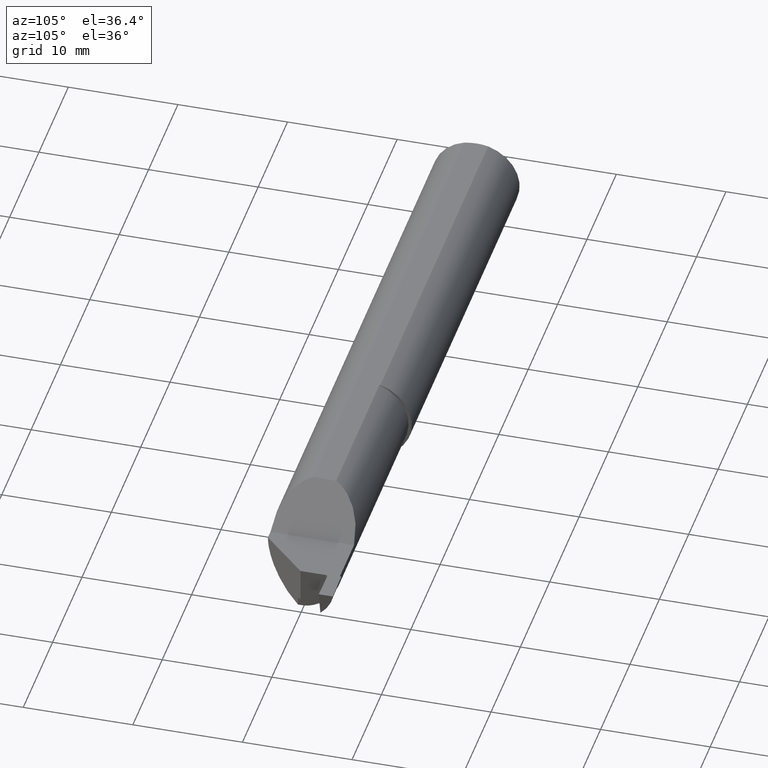
[diagram: clean part render]
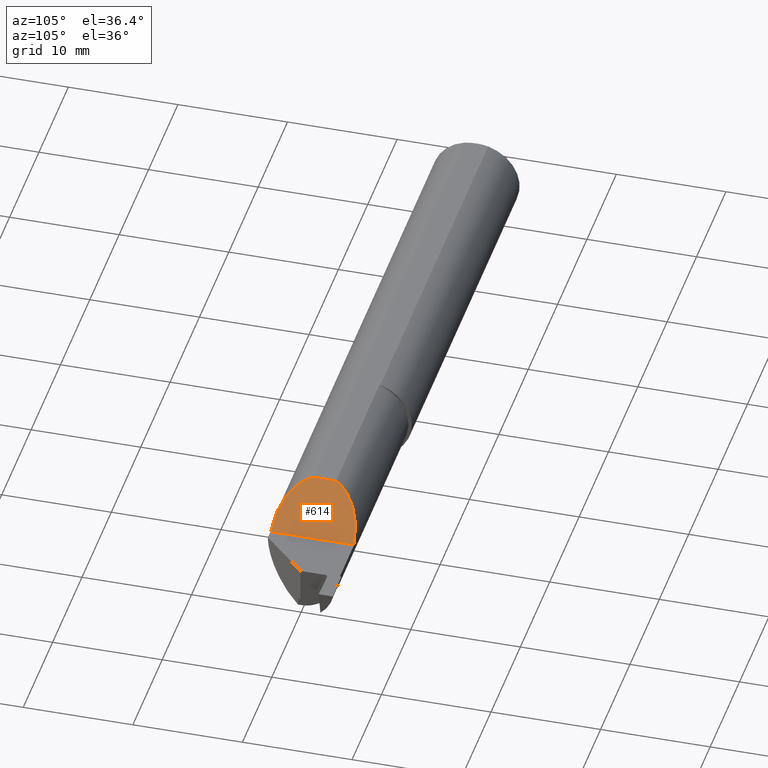
[diagram: same view with one face highlighted and labeled with its STEP entity id]
A machine part, auxiliary view. The second image highlights one B-rep face of the part: STEP entity #614.
In plain terms, the highlighted planar face has unit normal (0.7071, -0, 0.7071).
Its self-contained STEP definition (entity closure, byte-faithful):
#22 = VERTEX_POINT ( 'NONE', #567 ) ;
#30 = CARTESIAN_POINT ( 'NONE',  ( 2.189999999999999947, -0.04286257108480570621, 9.999999999993541345E-05 ) ) ;
#60 = FACE_OUTER_BOUND ( 'NONE', #726, .T. ) ;
#118 = CARTESIAN_POINT ( 'NONE',  ( 2.039999999999999591, -0.04286257108480545641, 0.1500999999999999834 ) ) ;
#132 = CARTESIAN_POINT ( 'NONE',  ( 2.039999999999999591, 0.03950672882812745340, 0.1500999999999999834 ) ) ;
#171 = CARTESIAN_POINT ( 'NONE',  ( 2.039999999999999591, 0.04286257108480545641, 0.1500999999999999834 ) ) ;
#182 =( BOUNDED_CURVE ( )  B_SPLINE_CURVE ( 3, ( #368, #324, #261, #592 ),
 .UNSPECIFIED., .F., .T. ) 
 B_SPLINE_CURVE_WITH_KNOTS ( ( 4, 4 ),
 ( 4.713013980425380112, 5.929564525929066576 ),
 .UNSPECIFIED. ) 
 CURVE ( )  GEOMETRIC_REPRESENTATION_ITEM ( )  RATIONAL_B_SPLINE_CURVE ( ( 1.000000000000000000, 0.8804232255846620170, 0.8804232255846620170, 1.000000000000000000 ) ) 
 REPRESENTATION_ITEM ( '' )  );
#208 = VERTEX_POINT ( 'NONE', #132 ) ;
#261 = CARTESIAN_POINT ( 'NONE',  ( 2.063975418773851711, 0.1044566178690502362, 0.1261245812261483912 ) ) ;
#268 = CARTESIAN_POINT ( 'NONE',  ( 2.039999999999999591, -0.04286257108480545641, 0.1500999999999999834 ) ) ;
#271 = CARTESIAN_POINT ( 'NONE',  ( 2.189999999999999947, -0.1560999679692472164, 9.999999999982123341E-05 ) ) ;
#286 = EDGE_CURVE ( 'NONE', #725, #22, #400, .T. ) ;
#312 = PLANE ( 'NONE',  #812 ) ;
#324 = CARTESIAN_POINT ( 'NONE',  ( 2.120766287695780239, 0.1440559360311356729, 0.06933371230421989106 ) ) ;
#363 = DIRECTION ( 'NONE',  ( -0.000000000000000000, 1.000000000000000000, 0.000000000000000000 ) ) ;
#368 = CARTESIAN_POINT ( 'NONE',  ( 2.189999999999999947, 0.1440992071097771388, 9.999999999993541345E-05 ) ) ;
#392 = CARTESIAN_POINT ( 'NONE',  ( 2.117630523791210084, -0.1560536069884282118, 0.07246947620879010121 ) ) ;
#393 = DIRECTION ( 'NONE',  ( 0.000000000000000000, -1.000000000000000000, 0.000000000000000000 ) ) ;
#395 = ORIENTED_EDGE ( 'NONE', *, *, #658, .T. ) ;
#398 = CARTESIAN_POINT ( 'NONE',  ( 2.059871508359184311, -0.1124504032942231085, 0.1302284916408148197 ) ) ;
#400 = LINE ( 'NONE', #30, #775 ) ;
#433 = CARTESIAN_POINT ( 'NONE',  ( 2.189999999999999947, 0.2560999999999999943, 9.999999999993541345E-05 ) ) ;
#502 = LINE ( 'NONE', #171, #596 ) ;
#522 = ORIENTED_EDGE ( 'NONE', *, *, #537, .F. ) ;
#537 = EDGE_CURVE ( 'NONE', #609, #208, #502, .T. ) ;
#550 =( BOUNDED_CURVE ( )  B_SPLINE_CURVE ( 3, ( #271, #392, #398, #268 ),
 .UNSPECIFIED., .F., .F. ) 
 B_SPLINE_CURVE_WITH_KNOTS ( ( 4, 4 ),
 ( 4.713029595418896101, 6.005028202575334539 ),
 .UNSPECIFIED. ) 
 CURVE ( )  GEOMETRIC_REPRESENTATION_ITEM ( )  RATIONAL_B_SPLINE_CURVE ( ( 1.000000000000000000, 0.8656657255323875200, 0.8656657255323875200, 1.000000000000000000 ) ) 
 REPRESENTATION_ITEM ( '' )  );
#567 = CARTESIAN_POINT ( 'NONE',  ( 2.189999999999999947, -0.1560999679692472164, 9.999999999982123341E-05 ) ) ;
#576 = DIRECTION ( 'NONE',  ( 0.7071067811865462405, -0.000000000000000000, 0.7071067811865487940 ) ) ;
#579 = DIRECTION ( 'NONE',  ( 0.7071067811865487940, 0.000000000000000000, -0.7071067811865462405 ) ) ;
#592 = CARTESIAN_POINT ( 'NONE',  ( 2.039999999999999591, 0.03950672882812745340, 0.1500999999999999834 ) ) ;
#596 = VECTOR ( 'NONE', #363, 39.37007874015748143 ) ;
#609 = VERTEX_POINT ( 'NONE', #118 ) ;
#614 = ADVANCED_FACE ( 'NONE', ( #60 ), #312, .T. ) ;
#658 = EDGE_CURVE ( 'NONE', #725, #208, #182, .T. ) ;
#725 = VERTEX_POINT ( 'NONE', #727 ) ;
#726 = EDGE_LOOP ( 'NONE', ( #787, #395, #522, #735 ) ) ;
#727 = CARTESIAN_POINT ( 'NONE',  ( 2.189999999999999947, 0.1440992071097771388, 9.999999999993541345E-05 ) ) ;
#735 = ORIENTED_EDGE ( 'NONE', *, *, #772, .F. ) ;
#772 = EDGE_CURVE ( 'NONE', #22, #609, #550, .T. ) ;
#775 = VECTOR ( 'NONE', #393, 39.37007874015748143 ) ;
#787 = ORIENTED_EDGE ( 'NONE', *, *, #286, .F. ) ;
#812 = AXIS2_PLACEMENT_3D ( 'NONE', #433, #576, #579 ) ;